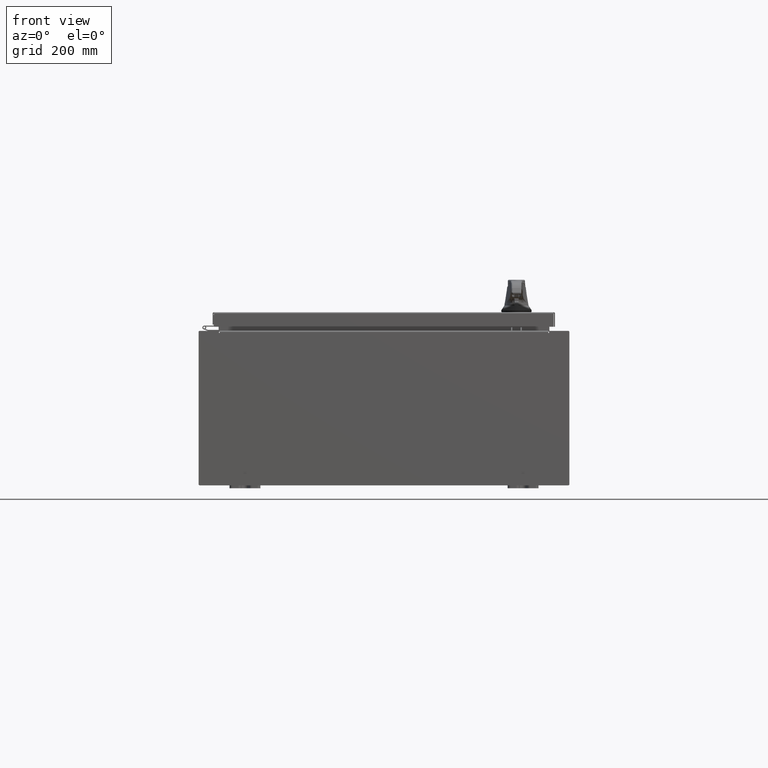
[diagram: clean part render]
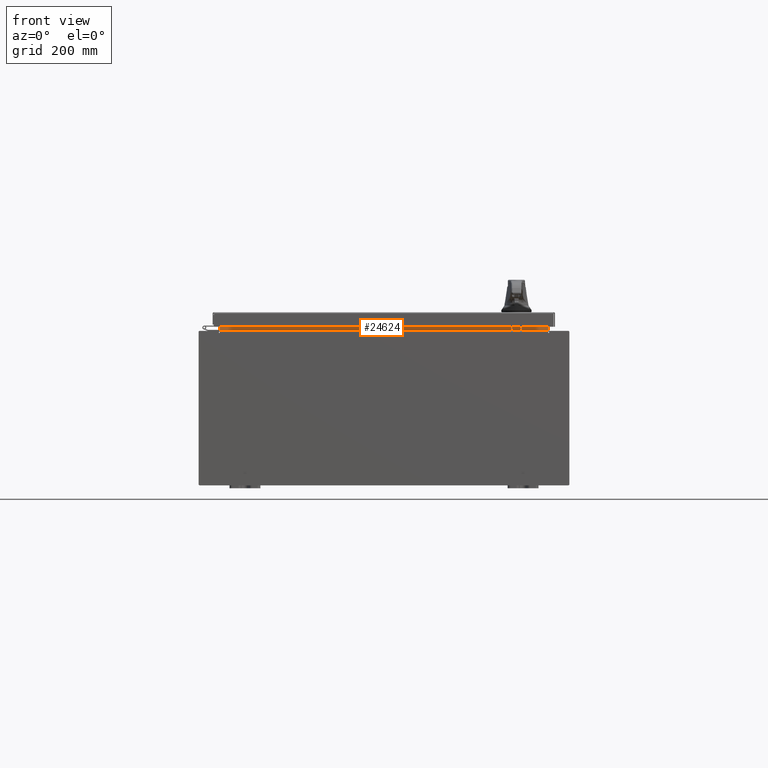
[diagram: same view with one face highlighted and labeled with its STEP entity id]
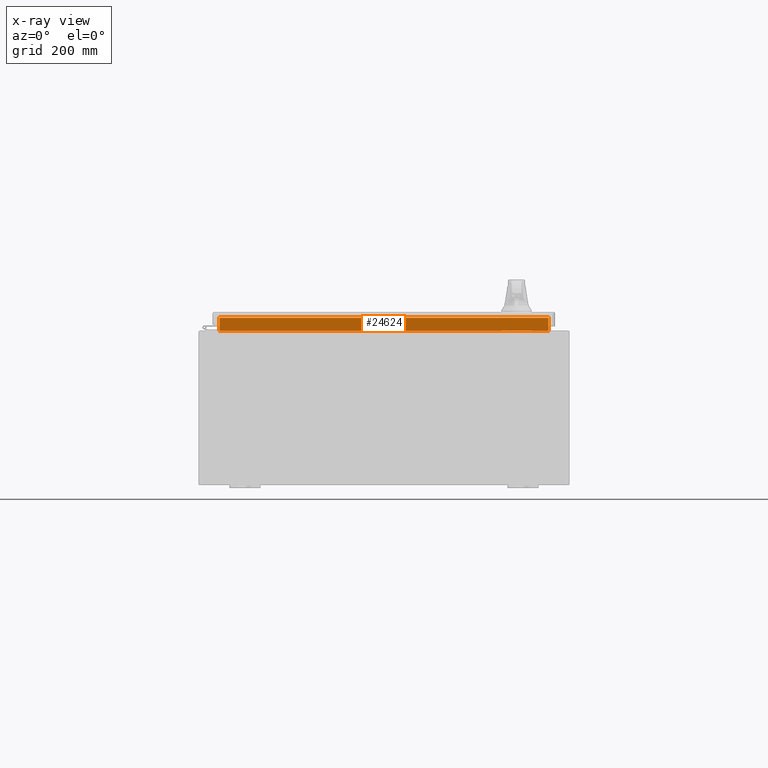
[diagram: x-ray of the same camera — body ghosted, the highlighted face saturated]
A machine part, front view. The second image highlights one B-rep face of the part: STEP entity #24624.
The next image is the same camera in x-ray: the body ghosted, the highlighted face saturated — about 0% of this face is hidden behind the body in this view.
In plain terms, the highlighted planar face has unit normal (0, -1, 0).
Its self-contained STEP definition (entity closure, byte-faithful):
#8711 = CARTESIAN_POINT ( 'NONE',  ( -10.63720000000000200, -1.300299999999999800, 5.000000000000004400 ) ) ;
#9908 = EDGE_LOOP ( 'NONE', ( #32202, #20365, #27098, #77960 ) ) ;
#9926 = CARTESIAN_POINT ( 'NONE',  ( 0.0000000000000000000, -1.300299999999999800, 0.0000000000000000000 ) ) ;
#10970 = CARTESIAN_POINT ( 'NONE',  ( 10.63720000000000200, -1.300299999999999800, 5.837600000000004600 ) ) ;
#11575 = EDGE_CURVE ( 'NONE', #104908, #72182, #72590, .T. ) ;
#15428 = VERTEX_POINT ( 'NONE', #10970 ) ;
#16306 = LINE ( 'NONE', #17626, #113436 ) ;
#17626 = CARTESIAN_POINT ( 'NONE',  ( 10.63720000000000200, -1.300299999999999800, 5.925300000000004500 ) ) ;
#19445 = DIRECTION ( 'NONE',  ( 0.0000000000000000000, -0.0000000000000000000, 1.000000000000000000 ) ) ;
#20365 = ORIENTED_EDGE ( 'NONE', *, *, #55168, .F. ) ;
#23531 = CARTESIAN_POINT ( 'NONE',  ( -10.63720000000000200, -1.300299999999999800, 5.013000000000003500 ) ) ;
#24624 = ADVANCED_FACE ( 'NONE', ( #54030 ), #113194, .T. ) ;
#27098 = ORIENTED_EDGE ( 'NONE', *, *, #104605, .F. ) ;
#32202 = ORIENTED_EDGE ( 'NONE', *, *, #105476, .F. ) ;
#36666 = DIRECTION ( 'NONE',  ( -0.0000000000000000000, -0.0000000000000000000, -1.000000000000000000 ) ) ;
#38212 = VECTOR ( 'NONE', #36666, 39.37007874015748100 ) ;
#38276 = AXIS2_PLACEMENT_3D ( 'NONE', #9926, #75725, #19445 ) ;
#42013 = DIRECTION ( 'NONE',  ( 1.000000000000000000, 0.0000000000000000000, 0.0000000000000000000 ) ) ;
#50197 = CARTESIAN_POINT ( 'NONE',  ( -10.63720000000000200, -1.300299999999999800, 5.837600000000004600 ) ) ;
#54030 = FACE_OUTER_BOUND ( 'NONE', #9908, .T. ) ;
#55168 = EDGE_CURVE ( 'NONE', #15428, #108970, #118058, .T. ) ;
#68232 = CARTESIAN_POINT ( 'NONE',  ( 10.63720000000000200, -1.300299999999999800, 5.837600000000004600 ) ) ;
#72182 = VERTEX_POINT ( 'NONE', #103225 ) ;
#72590 = LINE ( 'NONE', #23531, #94708 ) ;
#75725 = DIRECTION ( 'NONE',  ( 0.0000000000000000000, 1.000000000000000000, 0.0000000000000000000 ) ) ;
#77960 = ORIENTED_EDGE ( 'NONE', *, *, #11575, .F. ) ;
#83416 = DIRECTION ( 'NONE',  ( -0.0000000000000000000, -0.0000000000000000000, 1.000000000000000000 ) ) ;
#86750 = DIRECTION ( 'NONE',  ( -1.000000000000000000, -0.0000000000000000000, -0.0000000000000000000 ) ) ;
#91247 = LINE ( 'NONE', #8711, #38212 ) ;
#93029 = VECTOR ( 'NONE', #86750, 39.37007874015748100 ) ;
#94708 = VECTOR ( 'NONE', #42013, 39.37007874015748100 ) ;
#103225 = CARTESIAN_POINT ( 'NONE',  ( 10.63720000000000400, -1.300299999999999800, 5.013000000000003500 ) ) ;
#104605 = EDGE_CURVE ( 'NONE', #72182, #15428, #16306, .T. ) ;
#104908 = VERTEX_POINT ( 'NONE', #112125 ) ;
#105476 = EDGE_CURVE ( 'NONE', #108970, #104908, #91247, .T. ) ;
#108970 = VERTEX_POINT ( 'NONE', #50197 ) ;
#112125 = CARTESIAN_POINT ( 'NONE',  ( -10.63720000000000400, -1.300299999999999800, 5.013000000000003500 ) ) ;
#113194 = PLANE ( 'NONE',  #38276 ) ;
#113436 = VECTOR ( 'NONE', #83416, 39.37007874015748100 ) ;
#118058 = LINE ( 'NONE', #68232, #93029 ) ;